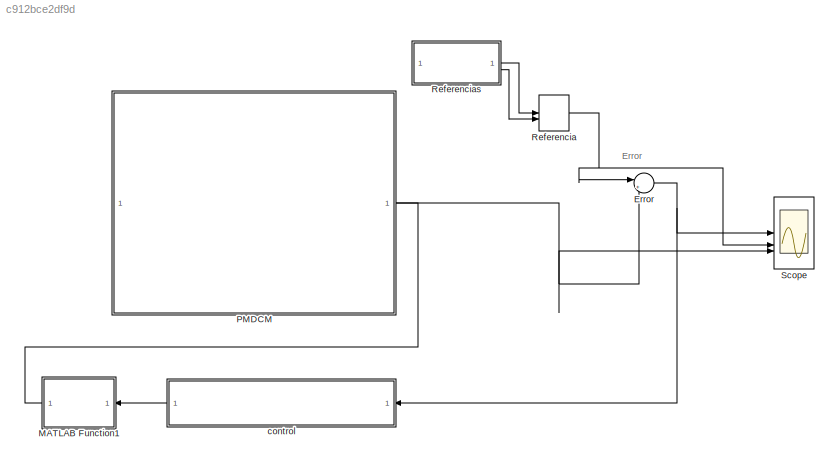
MODEL slx_c912bce2df9d
KIND model
CONFIG AbsTol = auto
CONFIG EnableMultiTasking = off
CONFIG FixedStep = auto
CONFIG MaxStep = auto
CONFIG MinStep = auto
CONFIG RelTol = 1e-3
CONFIG SampleTimeConstraint = Unconstrained
CONFIG SolverName = VariableStepAuto
CONFIG StartTime = 0.0
CONFIG StopTime = 10
BLOCK [Sum] Error
  Inputs = |+-
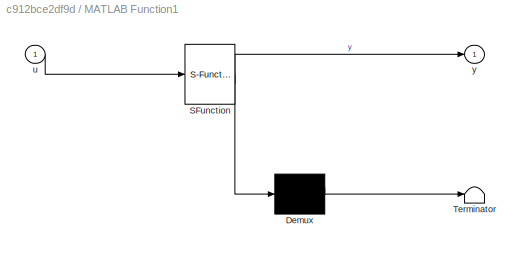
BLOCK [SubSystem] MATLAB Function1
  ErrorFcn = Stateflow.Translate.translate
  NameLocation = top
  PermitHierarchicalResolution = ExplicitOnly
  SFBlockType = MATLAB Function
  TreatAsAtomicUnit = on
BLOCK [Demux] MATLAB Function1/ Demux 
  Outputs = 1
BLOCK [S-Function] MATLAB Function1/ SFunction 
  EnableBusSupport = on
  FunctionName = sf_sfun
  PortCounts = [1 2]
  SFcnIsStateOwnerBlock = off
  SFunctionDeploymentMode = off
  Tag = Stateflow S-Function 5
BLOCK [Terminator] MATLAB Function1/ Terminator 
BLOCK [Inport] MATLAB Function1/u
BLOCK [Outport] MATLAB Function1/y
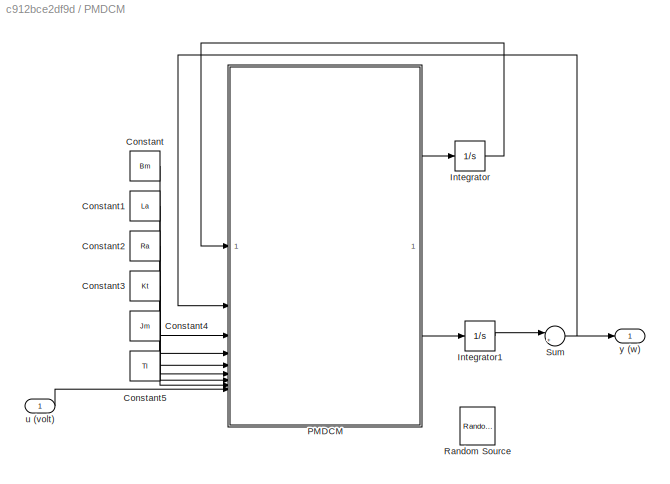
BLOCK [SubSystem] PMDCM
  PortSchema = {"entries":[{"content":{"sides":[{"content":{"connectorIds":[]},"type":"ConnectorPlacement.EquallySpacedRectSide","uuid":"65c5596c-c2a0-4a0a-bb90-73b3e0a1ad97"},{"content":{"connectorIds":["Out1","In1"],"side":"RIGHT"},"type":"ConnectorPlacement.EquallySpacedRectSide","uuid":"b3efeaed-d3f4-43dc-906b-ae839215104c"},{"content":{"connectorIds":[],"side":"TOP"},"type":"ConnectorPlacement.EquallySpaced...<+241ch>
BLOCK [Constant] PMDCM/Constant
  Value = Bm
BLOCK [Constant] PMDCM/Constant1
  Value = La
BLOCK [Constant] PMDCM/Constant2
  Value = Ra
BLOCK [Constant] PMDCM/Constant3
  Value = Kt
BLOCK [Constant] PMDCM/Constant4
  Value = Jm
BLOCK [Constant] PMDCM/Constant5
  Value = Tl
BLOCK [Integrator] PMDCM/Integrator
BLOCK [Integrator] PMDCM/Integrator1
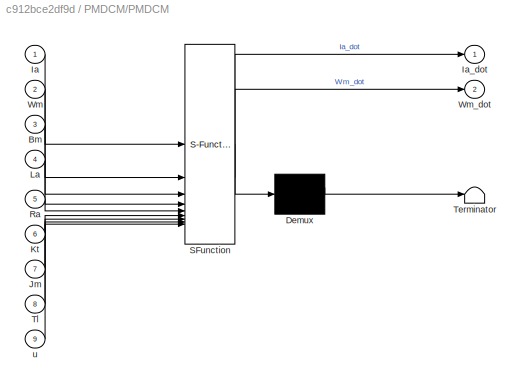
BLOCK [SubSystem] PMDCM/PMDCM
  ErrorFcn = Stateflow.Translate.translate
  PermitHierarchicalResolution = ExplicitOnly
  SFBlockType = MATLAB Function
  TreatAsAtomicUnit = on
BLOCK [Demux] PMDCM/PMDCM/ Demux 
  Outputs = 1
BLOCK [S-Function] PMDCM/PMDCM/ SFunction 
  EnableBusSupport = on
  FunctionName = sf_sfun
  PortCounts = [9 3]
  SFcnIsStateOwnerBlock = off
  SFunctionDeploymentMode = off
  Tag = Stateflow S-Function 2
BLOCK [Terminator] PMDCM/PMDCM/ Terminator 
BLOCK [Inport] PMDCM/PMDCM/Bm
  Port = 3
BLOCK [Inport] PMDCM/PMDCM/Ia
BLOCK [Outport] PMDCM/PMDCM/Ia_dot
BLOCK [Inport] PMDCM/PMDCM/Jm
  Port = 7
BLOCK [Inport] PMDCM/PMDCM/Kt
  Port = 6
BLOCK [Inport] PMDCM/PMDCM/La
  Port = 4
BLOCK [Inport] PMDCM/PMDCM/Ra
  Port = 5
BLOCK [Inport] PMDCM/PMDCM/Tl
  Port = 8
BLOCK [Inport] PMDCM/PMDCM/Wm
  Port = 2
BLOCK [Outport] PMDCM/PMDCM/Wm_dot
  Port = 2
BLOCK [Inport] PMDCM/PMDCM/u
  Port = 9
BLOCK [Reference] PMDCM/Random Source  REF=dspsrcs4/Random
Source
  SourceBlock = dspsrcs4/Random\nSource
  SourceType = Random Source
  UserDataPersistent = on
BLOCK [Sum] PMDCM/Sum
  Inputs = |++
BLOCK [Inport] PMDCM/u (volt)
BLOCK [Outport] PMDCM/y (w)
BLOCK [ManualSwitch] Referencia
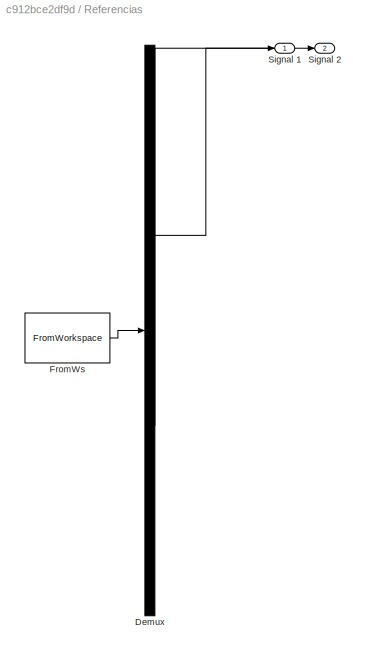
BLOCK [SubSystem] Referencias
  ClipboardFcn = sigbuilder_block('clipboard');
  CloseFcn = sigbuilder_block('close');
  ContinueFcn = sigbuilder_block('continue');
  CopyFcn = sigbuilder_block('copy');
  DeleteFcn = sigbuilder_block('delete');
  LoadFcn = sigbuilder_block('load');
  MaskHideContents = on
  ModelCloseFcn = sigbuilder_block('modelClose');
  NameChangeFcn = sigbuilder_block('namechange');
  OpenFcn = sigbuilder_block('open',[411 128.5 543.5 351.5 ]);
  PauseFcn = sigbuilder_block('pause');
  PreSaveFcn = sigbuilder_block('preSave');
  StartFcn = sigbuilder_block('start');
  StopFcn = sigbuilder_block('stop');
  Tag = STV Subsys
BLOCK [Demux] Referencias/Demux
  DisplayOption = none
  Outputs = 2
  Tag = STV Demux
BLOCK [FromWorkspace] Referencias/FromWs
  Tag = STV FromWs
  VariableName = tuvar
BLOCK [Outport] Referencias/Signal 1
  Tag = STV Outport
BLOCK [Outport] Referencias/Signal 2
  Port = 2
  Tag = STV Outport
BLOCK [Scope] Scope
  Floating = off
  NumInputPorts = 3
  ScopeSpecificationString = Simulink.scopes.TimeScopeBlockCfg('CurrentConfiguration', extmgr.ConfigurationSet(extmgr.Configuration('Core','General UI',true),extmgr.Configuration('Core','Source UI',true),extmgr.Configuration('Sources','WiredSimulink',true),extmgr.Configuration('Visuals','Time Domain',true,'SerializedDisplays',{struct('MinYLimReal','-63.92361','MaxYLimReal','199.68159','YLabelReal','','MinYLimMag','0.00000','M...<+2017ch>
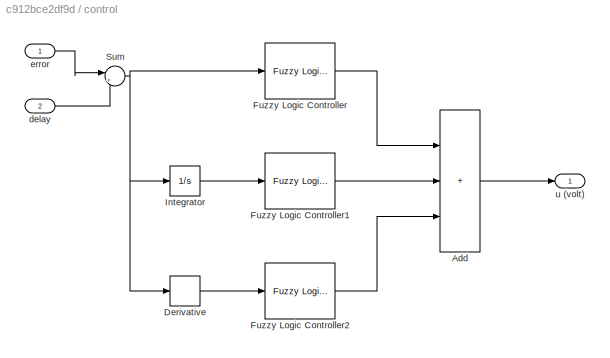
BLOCK [SubSystem] control
  NameLocation = top
BLOCK [Sum] control/Add
  IconShape = rectangular
  Inputs = +++
BLOCK [Derivative] control/Derivative
BLOCK [Reference] control/Fuzzy Logic Controller  REF=fuzblock/Fuzzy Logic   (lib defined in mdl_858b3b3e7478)
Controller
  SourceBlock = fuzblock/Fuzzy Logic \nController
  SourceType = Fuzzy Inference System
BLOCK [Reference] control/Fuzzy Logic Controller1  REF=fuzblock/Fuzzy Logic   (lib defined in mdl_858b3b3e7478)
Controller
  SourceBlock = fuzblock/Fuzzy Logic \nController
  SourceType = Fuzzy Inference System
BLOCK [Reference] control/Fuzzy Logic Controller2  REF=fuzblock/Fuzzy Logic   (lib defined in mdl_858b3b3e7478)
Controller
  SourceBlock = fuzblock/Fuzzy Logic \nController
  SourceType = Fuzzy Inference System
BLOCK [Integrator] control/Integrator
BLOCK [Sum] control/Sum
  Inputs = |++
BLOCK [Inport] control/delay
  Port = 2
BLOCK [Inport] control/error
BLOCK [Outport] control/u (volt)
ANNOTATION (root): Error
NET Error:1 -> Scope:1, control:1
LINE MATLAB Function1:1 -> PMDCM:1
LINE PMDCM/Constant1:1 -> PMDCM/PMDCM:4
LINE PMDCM/Constant2:1 -> PMDCM/PMDCM:5
LINE PMDCM/Constant3:1 -> PMDCM/PMDCM:6
LINE PMDCM/Constant4:1 -> PMDCM/PMDCM:7
LINE PMDCM/Constant5:1 -> PMDCM/PMDCM:8
LINE PMDCM/Constant:1 -> PMDCM/PMDCM:3
LINE PMDCM/Integrator1:1 -> PMDCM/Sum:1
LINE PMDCM/Integrator:1 -> PMDCM/PMDCM:1
LINE PMDCM/PMDCM:1 -> PMDCM/Integrator:1
LINE PMDCM/PMDCM:2 -> PMDCM/Integrator1:1
NET PMDCM/Sum:1 -> PMDCM/PMDCM:2, PMDCM/y (w):1
LINE PMDCM/u (volt):1 -> PMDCM/PMDCM:9
NET PMDCM:1 -> Error:2, Scope:3
NET Referencia:1 -> Error:1, Scope:2
LINE Referencias:1 -> Referencia:1
LINE Referencias:2 -> Referencia:2
LINE control/Add:1 -> control/u (volt):1
LINE control/Derivative:1 -> control/Fuzzy Logic Controller2:1
LINE control/Fuzzy Logic Controller1:1 -> control/Add:2
LINE control/Fuzzy Logic Controller2:1 -> control/Add:3
LINE control/Fuzzy Logic Controller:1 -> control/Add:1
LINE control/Integrator:1 -> control/Fuzzy Logic Controller1:1
NET control/Sum:1 -> control/Derivative:1, control/Fuzzy Logic Controller:1, control/Integrator:1
LINE control/delay:1 -> control/Sum:2
LINE control/error:1 -> control/Sum:1
LINE control:1 -> MATLAB Function1:1
note: NET lines group one-source signal fan-out (src -> all destinations, sorted); 1:1 wires keep LINE
CHART PMDCM/PMDCM states=1 transitions=1
  STATE_LABEL 'eML_blk_kernel()'
  STATE_LABEL 'SCRIPT:\nfunction [Ia_dot,Wm_dot] = fcn(Ia, Wm, Bm, La, Ra, Kt, Jm, Tl, u)\n\n    Ia_dot = -(Ra/La)*Ia - (Kt/La)*Wm + (1/La)*u;\n    Wm_dot = (Kt/Jm)*Ia - (Bm/Jm)*Wm - (1/Jm)*Tl;\n\nend'
CHART MATLAB Function1 states=1 transitions=1
  STATE_LABEL 'eML_blk_kernel()'
  STATE_LABEL 'SCRIPT:\nfunction y = fcn(u)\n    if u > 15\n        y = 15;\n    elseif u < -15\n        y = -15;\n    else\n        y = u;\n    end'
CHART  states=0 transitions=0
CHART  states=0 transitions=0
